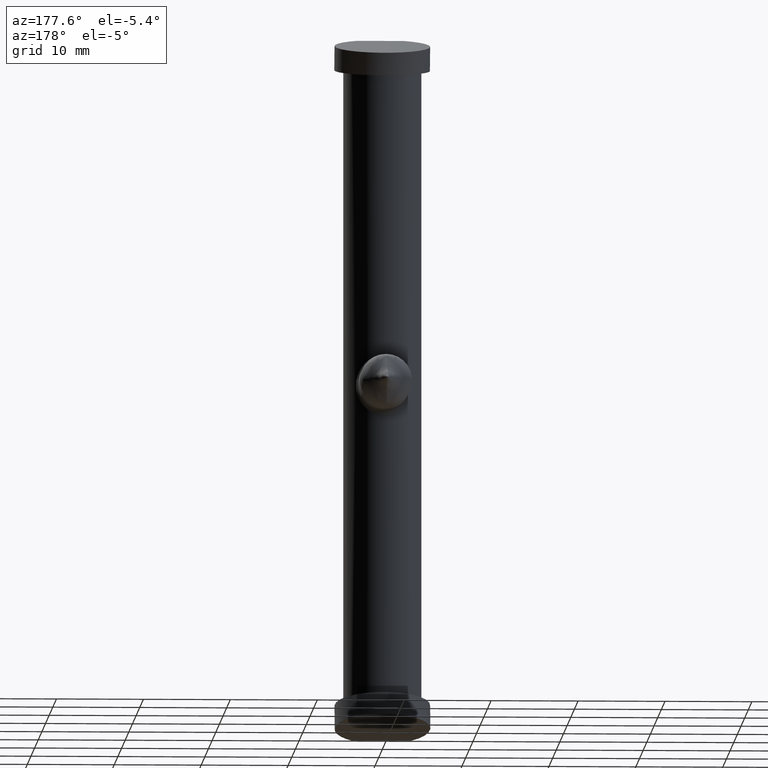
[diagram: clean part render]
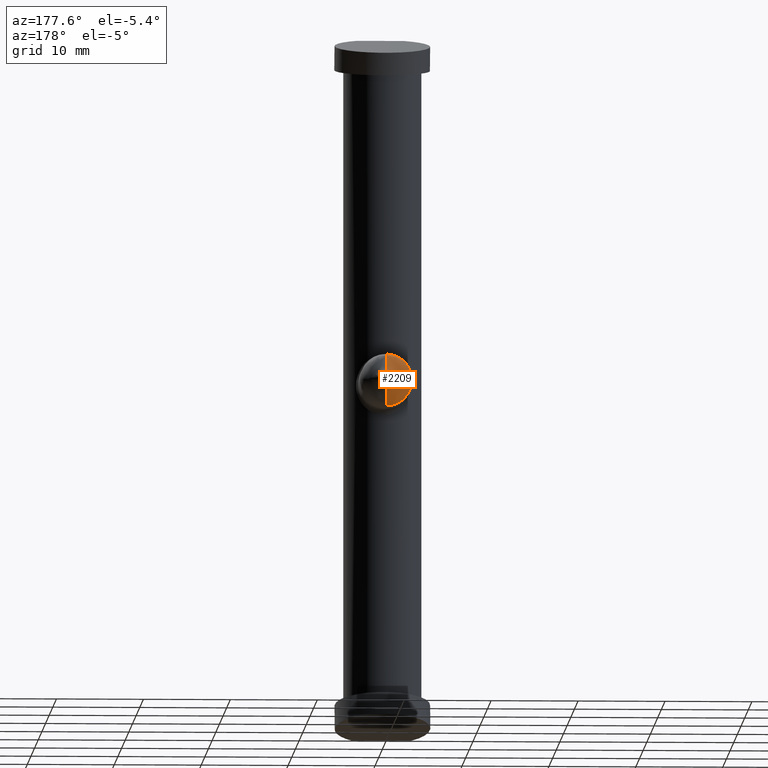
[diagram: same view with one face highlighted and labeled with its STEP entity id]
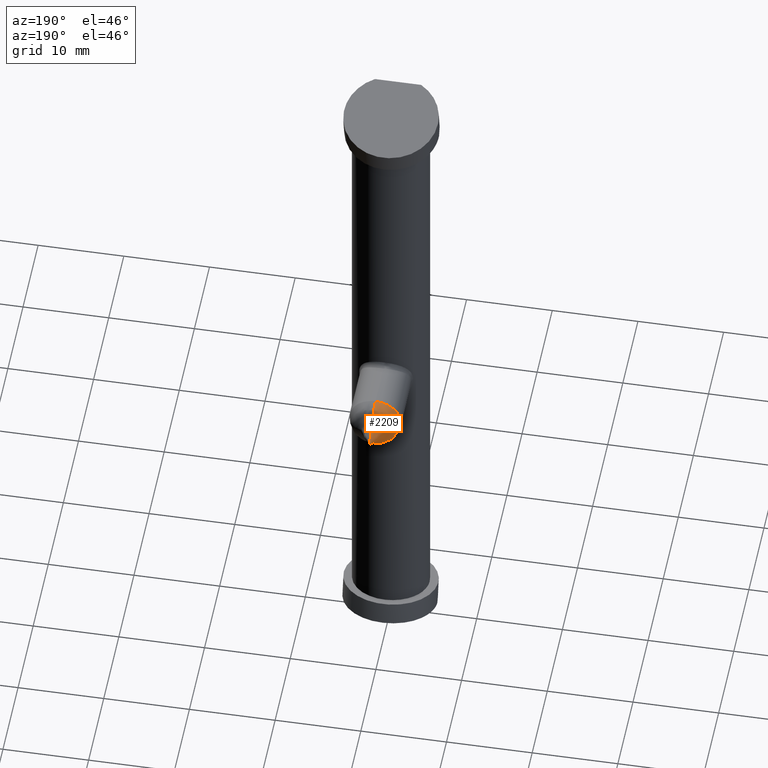
[diagram: same view with one face highlighted and labeled with its STEP entity id]
A machine part, auxiliary view. The second image highlights one B-rep face of the part: STEP entity #2209.
A second angle (auxiliary view) of the same face is appended — the face is thin or edge-on in the first view.
In plain terms, the highlighted face is a freeform B-spline surface patch.
Its self-contained STEP definition (entity closure, byte-faithful):
#2199 = EDGE_CURVE ( 'NONE', #2207, #2202, #2764, .T. ) ;
#2200 = ORIENTED_EDGE ( 'NONE', *, *, #2199, .F. ) ;
#2201 = ORIENTED_EDGE ( 'NONE', *, *, #2203, .T. ) ;
#2202 = VERTEX_POINT ( 'NONE', #2759 ) ;
#2203 = EDGE_CURVE ( 'NONE', #2206, #2202, #2755, .T. ) ;
#2204 = EDGE_LOOP ( 'NONE', ( #2210, #2201, #2200 ) ) ;
#2206 = VERTEX_POINT ( 'NONE', #2725 ) ;
#2207 = VERTEX_POINT ( 'NONE', #2724 ) ;
#2208 = EDGE_CURVE ( 'NONE', #2206, #2207, #2722, .T. ) ;
#2209 = ADVANCED_FACE ( 'NONE', ( #2723 ), #2797, .F. ) ;
#2210 = ORIENTED_EDGE ( 'NONE', *, *, #2208, .F. ) ;
#2559 = CARTESIAN_POINT ( 'NONE',  ( -5.087331702219458200E-016, 11.93257941538482700, -2.077129391963513000 ) ) ;
#2560 = CARTESIAN_POINT ( 'NONE',  ( -4.154258783927026000, 11.93257941538482700, -2.077129391963511700 ) ) ;
#2561 = CARTESIAN_POINT ( 'NONE',  ( -4.154258783927026000, 11.93257941538482700, 2.077129391963513000 ) ) ;
#2562 = CARTESIAN_POINT ( 'NONE',  ( 2.543665851109729100E-016, 11.93257941538482700, 2.077129391963513000 ) ) ;
#2563 = CARTESIAN_POINT ( 'NONE',  ( -3.957936101239297600E-016, 12.21931883996922800, -1.616003415663060900 ) ) ;
#2564 = CARTESIAN_POINT ( 'NONE',  ( -3.232006831326122300, 12.21931883996923000, -1.616003415663060000 ) ) ;
#2565 = CARTESIAN_POINT ( 'NONE',  ( -3.232006831326122300, 12.21931883996923000, 1.616003415663061400 ) ) ;
#2566 = CARTESIAN_POINT ( 'NONE',  ( 1.978968050619648800E-016, 12.21931883996922800, 1.616003415663060900 ) ) ;
#2567 = CARTESIAN_POINT ( 'NONE',  ( -2.535570343868356900E-016, 12.57198621470809900, -1.035259345157753400 ) ) ;
#2572 = CARTESIAN_POINT ( 'NONE',  ( -7.347638122934262600E-016, 10.31214384659406800, -2.999999999999999600 ) ) ;
#2573 = CARTESIAN_POINT ( 'NONE',  ( -6.000000000000000900, 10.31214384659406800, -2.999999999999998200 ) ) ;
#2574 = CARTESIAN_POINT ( 'NONE',  ( -5.999999999999999100, 10.31214384659406800, 3.000000000000000400 ) ) ;
#2575 = CARTESIAN_POINT ( 'NONE',  ( 3.673819061467131300E-016, 10.31214384659406800, 2.999999999999999600 ) ) ;
#2609 = CARTESIAN_POINT ( 'NONE',  ( -2.070518690315507300, 12.57198621470809900, -1.035259345157753000 ) ) ;
#2610 = CARTESIAN_POINT ( 'NONE',  ( -2.070518690315506800, 12.57198621470809900, 1.035259345157753600 ) ) ;
#2611 = CARTESIAN_POINT ( 'NONE',  ( 1.267785171934178400E-016, 12.57198621470809900, 1.035259345157753400 ) ) ;
#2632 = CARTESIAN_POINT ( 'NONE',  ( -6.962514680561547800E-016, 10.62316625479682300, -2.842756228901383200 ) ) ;
#2633 = CARTESIAN_POINT ( 'NONE',  ( -5.685512457802767400, 10.62316625479682300, -2.842756228901381900 ) ) ;
#2634 = CARTESIAN_POINT ( 'NONE',  ( -5.685512457802766500, 10.62316625479682300, 2.842756228901384100 ) ) ;
#2635 = CARTESIAN_POINT ( 'NONE',  ( 3.481257340280773900E-016, 10.62316625479682300, 2.842756228901383200 ) ) ;
#2636 = CARTESIAN_POINT ( 'NONE',  ( -7.353218300051731000E-016, 11.48974316627438700, -3.002278355448691800 ) ) ;
#2637 = CARTESIAN_POINT ( 'NONE',  ( -6.004556710897384500, 11.48974316627438700, -3.002278355448690900 ) ) ;
#2638 = CARTESIAN_POINT ( 'NONE',  ( -6.004556710897384500, 11.48974316627438700, 3.002278355448692700 ) ) ;
#2639 = CARTESIAN_POINT ( 'NONE',  ( 3.676609150025865500E-016, 11.48974316627438700, 3.002278355448691800 ) ) ;
#2687 = CARTESIAN_POINT ( 'NONE',  ( 0.0000000000000000000, 10.31214384659406800, -2.999999999999999600 ) ) ;
#2688 = CARTESIAN_POINT ( 'NONE',  ( -3.481257340280773900E-016, 10.62316625479682300, -2.842756228901383200 ) ) ;
#2689 = CARTESIAN_POINT ( 'NONE',  ( -3.676609150025865500E-016, 11.48974316627438700, -3.002278355448691800 ) ) ;
#2690 = CARTESIAN_POINT ( 'NONE',  ( -2.543665851109729100E-016, 11.93257941538482700, -2.077129391963513000 ) ) ;
#2691 = CARTESIAN_POINT ( 'NONE',  ( -1.978968050619648800E-016, 12.21931883996922800, -1.616003415663060900 ) ) ;
#2692 = CARTESIAN_POINT ( 'NONE',  ( -1.267785171934178400E-016, 12.57198621470809900, -1.035259345157753400 ) ) ;
#2693 = CARTESIAN_POINT ( 'NONE',  ( -8.641862792787737400E-017, 13.67383855967348100, -0.7056849546643128000 ) ) ;
#2694 = CARTESIAN_POINT ( 'NONE',  ( -6.231245914100245300E-018, 14.03733008681594900, -0.05088366473561556400 ) ) ;
#2695 = CARTESIAN_POINT ( 'NONE',  ( 0.0000000000000000000, 14.49999999999999800, 0.0000000000000000000 ) ) ;
#2705 = CARTESIAN_POINT ( 'NONE',  ( 3.673819061467131300E-016, 10.31214384659406800, 2.999999999999999600 ) ) ;
#2706 = CARTESIAN_POINT ( 'NONE',  ( 0.0000000000000000000, 10.62316625479682300, 2.842756228901383200 ) ) ;
#2707 = CARTESIAN_POINT ( 'NONE',  ( 0.0000000000000000000, 11.48974316627438700, 3.002278355448691800 ) ) ;
#2708 = CARTESIAN_POINT ( 'NONE',  ( 0.0000000000000000000, 11.93257941538482700, 2.077129391963513000 ) ) ;
#2709 = CARTESIAN_POINT ( 'NONE',  ( 0.0000000000000000000, 12.21931883996922800, 1.616003415663060900 ) ) ;
#2710 = CARTESIAN_POINT ( 'NONE',  ( 0.0000000000000000000, 12.57198621470809900, 1.035259345157753400 ) ) ;
#2711 = CARTESIAN_POINT ( 'NONE',  ( 0.0000000000000000000, 13.67383855967348100, 0.7056849546643128000 ) ) ;
#2712 = CARTESIAN_POINT ( 'NONE',  ( 0.0000000000000000000, 14.03733008681594900, 0.05088366473561556400 ) ) ;
#2713 = CARTESIAN_POINT ( 'NONE',  ( 0.0000000000000000000, 14.49999999999999800, 0.0000000000000000000 ) ) ;
#2722 = B_SPLINE_CURVE_WITH_KNOTS ( 'NONE', 3,
 ( #2713, #2712, #2711, #2710, #2709, #2708, #2707, #2706, #2705 ),
 .UNSPECIFIED., .F., .F.,
 ( 4, 1, 1, 1, 1, 1, 4 ),
 ( 0.0000000000000000000, 0.2876328793728005800, 0.3535026158652152000, 0.6765131255687328900, 0.7263293925451586000, 0.8377390752867698300, 0.9742481829119101800 ),
 .UNSPECIFIED. ) ;
#2723 = FACE_OUTER_BOUND ( 'NONE', #2204, .T. ) ;
#2724 = CARTESIAN_POINT ( 'NONE',  ( 3.673819061467131300E-016, 10.31214384659406800, 2.999999999999999600 ) ) ;
#2725 = CARTESIAN_POINT ( 'NONE',  ( 0.0000000000000000000, 14.49999999999999800, 0.0000000000000000000 ) ) ;
#2755 = B_SPLINE_CURVE_WITH_KNOTS ( 'NONE', 3,
 ( #2695, #2694, #2693, #2692, #2691, #2690, #2689, #2688, #2687 ),
 .UNSPECIFIED., .F., .F.,
 ( 4, 1, 1, 1, 1, 1, 4 ),
 ( 0.0000000000000000000, 0.2876328793728005800, 0.3535026158652152000, 0.6765131255687328900, 0.7263293925451586000, 0.8377390752867698300, 0.9742481829119101800 ),
 .UNSPECIFIED. ) ;
#2759 = CARTESIAN_POINT ( 'NONE',  ( 0.0000000000000000000, 10.31214384659406800, -2.999999999999999600 ) ) ;
#2760 = DIRECTION ( 'NONE',  ( 0.0000000000000000000, 0.0000000000000000000, -1.000000000000000000 ) ) ;
#2761 = DIRECTION ( 'NONE',  ( -0.0000000000000000000, -1.000000000000000000, -0.0000000000000000000 ) ) ;
#2762 = CARTESIAN_POINT ( 'NONE',  ( 0.0000000000000000000, 10.31214384659406800, 0.0000000000000000000 ) ) ;
#2763 = AXIS2_PLACEMENT_3D ( 'NONE', #2762, #2761, #2760 ) ;
#2764 = CIRCLE ( 'NONE', #2763, 2.999999999999999600 ) ;
#2797 =( BOUNDED_SURFACE ( )  B_SPLINE_SURFACE ( 3, 3, ( 
 ( #2873, #2872, #2871, #2870 ),
 ( #2869, #2868, #2867, #2866 ),
 ( #2865, #2864, #2863, #2862 ),
 ( #2611, #2610, #2609, #2567 ),
 ( #2566, #2565, #2564, #2563 ),
 ( #2562, #2561, #2560, #2559 ),
 ( #2639, #2638, #2637, #2636 ),
 ( #2635, #2634, #2633, #2632 ),
 ( #2575, #2574, #2573, #2572 ) ),
 .UNSPECIFIED., .F., .F., .T. ) 
 B_SPLINE_SURFACE_WITH_KNOTS ( ( 4, 1, 1, 1, 1, 1, 4 ),
 ( 4, 4 ),
 ( 0.0000000000000000000, 0.2876328793728005800, 0.3535026158652151400, 0.6765131255687328900, 0.7263293925451586000, 0.8377390752867698300, 0.9742481829119101800 ),
 ( 0.0000000000000000000, 1.000000000000000000 ),
 .UNSPECIFIED. ) 
 GEOMETRIC_REPRESENTATION_ITEM ( )  RATIONAL_B_SPLINE_SURFACE ( (
 ( 1.000000000000000000, 0.3333333333333333700, 0.3333333333333333700, 1.000000000000000000),
 ( 1.000000000000000000, 0.3333333333333333700, 0.3333333333333333700, 1.000000000000000000),
 ( 1.000000000000000000, 0.3333333333333333700, 0.3333333333333333700, 1.000000000000000000),
 ( 1.000000000000000000, 0.3333333333333333700, 0.3333333333333333700, 1.000000000000000000),
 ( 1.000000000000000000, 0.3333333333333333700, 0.3333333333333333700, 1.000000000000000000),
 ( 1.000000000000000000, 0.3333333333333333700, 0.3333333333333333700, 1.000000000000000000),
 ( 1.000000000000000000, 0.3333333333333333700, 0.3333333333333333700, 1.000000000000000000),
 ( 1.000000000000000000, 0.3333333333333333700, 0.3333333333333333700, 1.000000000000000000),
 ( 1.000000000000000000, 0.3333333333333333700, 0.3333333333333333700, 1.000000000000000000) ) ) 
 REPRESENTATION_ITEM ( '' )  SURFACE ( )  );
#2862 = CARTESIAN_POINT ( 'NONE',  ( -1.728372558557547500E-016, 13.67383855967348100, -0.7056849546643128000 ) ) ;
#2863 = CARTESIAN_POINT ( 'NONE',  ( -1.411369909328625800, 13.67383855967348100, -0.7056849546643124700 ) ) ;
#2864 = CARTESIAN_POINT ( 'NONE',  ( -1.411369909328625600, 13.67383855967348100, 0.7056849546643130200 ) ) ;
#2865 = CARTESIAN_POINT ( 'NONE',  ( 8.641862792787737400E-017, 13.67383855967348100, 0.7056849546643128000 ) ) ;
#2866 = CARTESIAN_POINT ( 'NONE',  ( -1.246249182820049100E-017, 14.03733008681594900, -0.05088366473561556400 ) ) ;
#2867 = CARTESIAN_POINT ( 'NONE',  ( -0.1017673294712311400, 14.03733008681594900, -0.05088366473561555000 ) ) ;
#2868 = CARTESIAN_POINT ( 'NONE',  ( -0.1017673294712311100, 14.03733008681594900, 0.05088366473561557700 ) ) ;
#2869 = CARTESIAN_POINT ( 'NONE',  ( 6.231245914100245300E-018, 14.03733008681594900, 0.05088366473561556400 ) ) ;
#2870 = CARTESIAN_POINT ( 'NONE',  ( -7.674379178903953500E-032, 14.49999999999999600, -3.133406565689386400E-016 ) ) ;
#2871 = CARTESIAN_POINT ( 'NONE',  ( -6.266813131378773800E-016, 14.49999999999999800, -3.133406565689385400E-016 ) ) ;
#2872 = CARTESIAN_POINT ( 'NONE',  ( -6.266813131378772900E-016, 14.49999999999999800, 3.133406565689387400E-016 ) ) ;
#2873 = CARTESIAN_POINT ( 'NONE',  ( 3.837189589451976800E-032, 14.49999999999999600, 3.133406565689386400E-016 ) ) ;